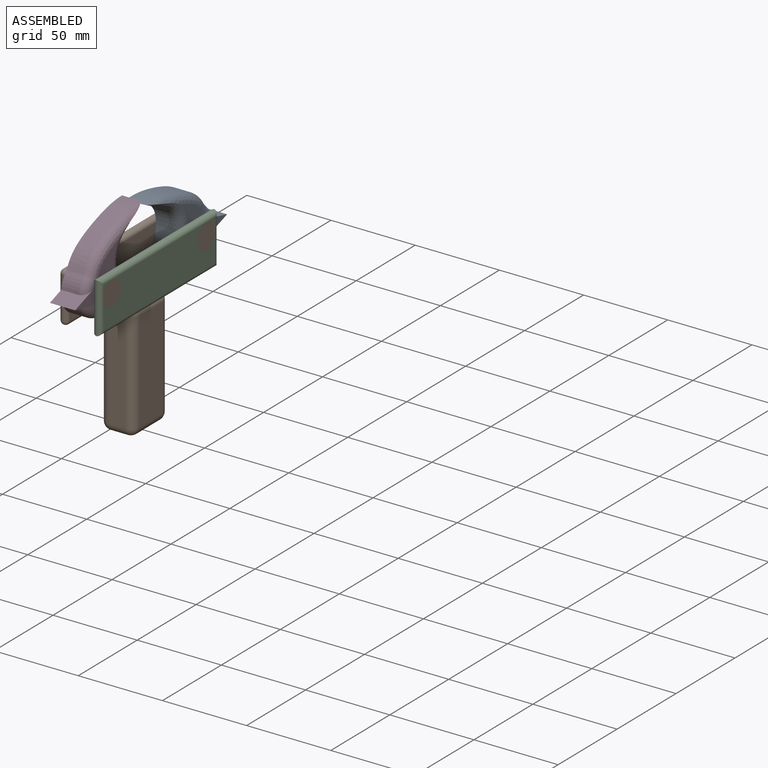
[diagram: assembled view]
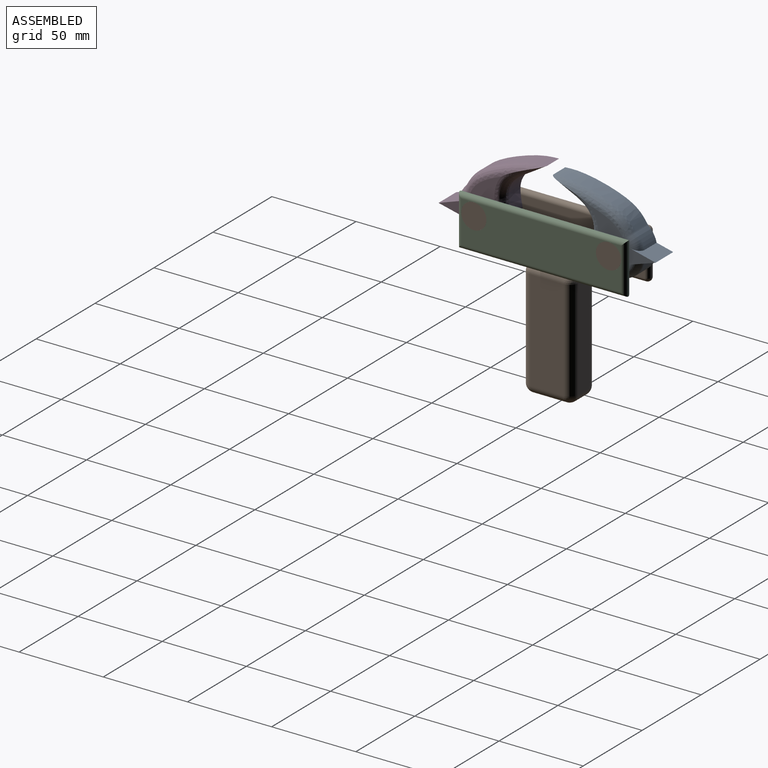
[diagram: assembled view, second angle]
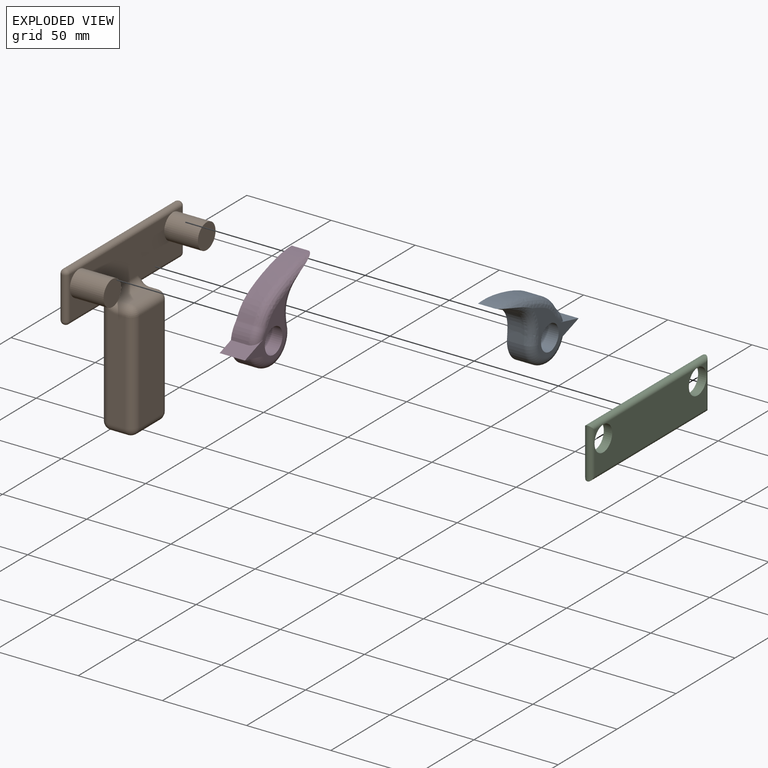
[diagram: exploded view]
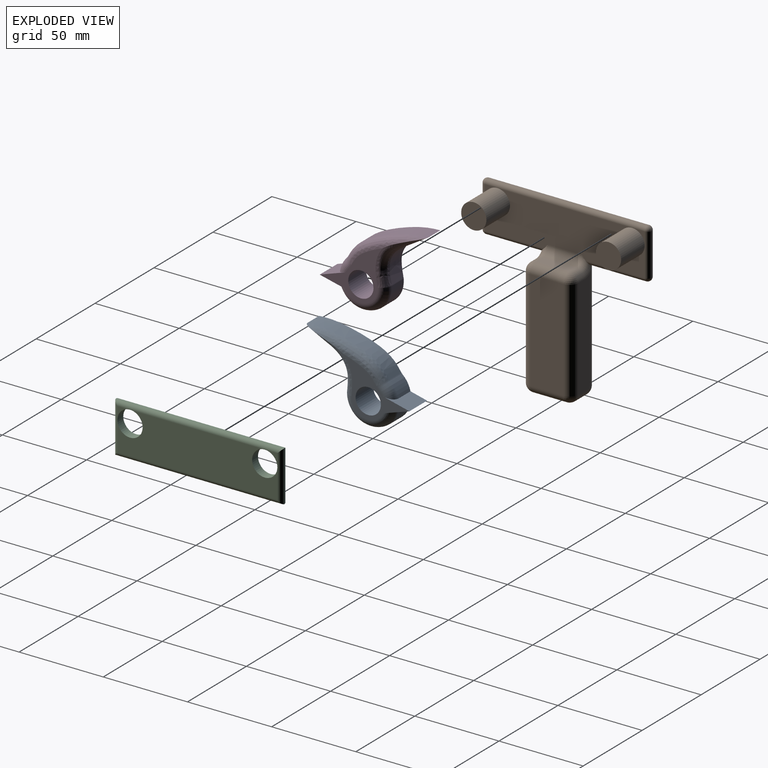
[diagram: exploded view, second angle]
ASSEMBLY  parts=4 mates=3
PART A: 15 faces, bbox 17.1x35.6x75.7 mm
  f0: extruded ~37.52x11.81mm, area 429.6mm2, adj f1,f5,f8,f13
  f1: cylinder r=15mm len=26.84mm, axis (-1,0,0), area 451.1mm2, adj f0,f2,f8,f11
  f2: plane 17.05x15.64mm, normal (0,-0.54,-0.84), area 158.4mm2, adj f1,f3,f7,f8,f11
  f3: plane 17.05x16.74mm, normal (0,0.91,0.42), area 158.4mm2, adj f2,f4,f7,f8,f10
  f4: cylinder r=15mm len=10mm, axis (-1,0,0), area 93.2mm2, adj f3,f8,f9,f10
  f5: extruded ~48.79x18.41mm, area 537mm2, adj f0,f8,f9,f14
  f6: cylinder r=7.5mm len=15mm, axis (-1,0,0), area 706.9mm2, adj f7,f8
  f7: plane 43.51x26.06mm, normal (1,0,0), area 325.2mm2, adj f2,f3,f6,f10,f11,f12,f13,f14
  f8: plane 67.84x32.27mm, normal (-1,0,0), area 912.8mm2, adj f0,f1,f2,f3,f4,f5,f6,f9
  f9: cylinder r=5mm len=10mm, axis (-1,0,0), area 12.8mm2, adj f4,f5,f8,f12
  f10: torus R=10mm, axis (1,0,0), area 50.9mm2, adj f3,f4,f7,f12
  f11: torus R=10mm, axis (1,0,0), area 297mm2, adj f1,f2,f7,f13
  f12: torus R=10mm, axis (1,0,0), area 13.7mm2, adj f7,f9,f10,f14
  f13: bspline ~49.53x19.96mm, area 252.5mm2, adj f0,f7,f11,f14
  f14: bspline ~51.45x22.65mm, area 306.3mm2, adj f5,f7,f12,f13
PART B: 42 faces, bbox 29.8x100.1x100.1 mm
  f0: plane 7.5x7.5mm, normal (1,0,0), area 12.1mm2, adj f6,f14,f35
  f1: plane 95.09x25.09mm, normal (1,0,0), area 1941.4mm2, adj f4,f6,f13,f14,f15,f20,f26,f35
  f2: plane 7.5x7.5mm, normal (1,0,0), area 12.1mm2, adj f4,f15,f35
  f3: plane 95x92.5mm, normal (-1,0,0), area 3725mm2, adj f14,f15,f16,f17,f34,f35,f39,f40
  f4: cylinder r=7.5mm len=20mm, axis (-1,0,0), area 942.5mm2, adj f1,f2,f5
  f5: plane 15x15mm, normal (1,0,0), area 176.7mm2, adj f4
  f6: cylinder r=7.5mm len=20mm, axis (-1,0,0), area 942.5mm2, adj f0,f1,f7
  f7: plane 15x15mm, normal (1,0,0), area 176.7mm2, adj f6
  f8: plane 20x5mm, normal (0,0,1), area 100mm2, adj f13,f21,f23,f25
  f9: plane 20x10mm, normal (0,0,-1), area 200mm2, adj f27,f30,f31,f34
  f10: plane 61.34x10mm, normal (0,1,0), area 602.2mm2, adj f16,f18,f20,f21,f31
  f11: plane 61.34x10mm, normal (0,-1,0), area 602.2mm2, adj f17,f19,f25,f26,f30
  f12: plane 60x20mm, normal (1,0,0), area 1200mm2, adj f18,f19,f23,f27
  f13: cylinder r=5mm len=20mm, axis (0,-1,0), area 157.1mm2, adj f1,f8,f20,f26
  f14: cylinder r=2.5mm len=25mm, axis (0,0,-1), area 196.3mm2, adj f0,f1,f3,f37,f41
  f15: cylinder r=2.5mm len=25mm, axis (0,0,1), area 196.3mm2, adj f1,f2,f3,f36,f38
  f16: cylinder r=5mm len=67.5mm, axis (0,0,1), area 512.4mm2, adj f3,f10,f20,f33,f40
  f17: cylinder r=5mm len=67.5mm, axis (0,0,-1), area 512.4mm2, adj f3,f11,f26,f32,f39
  f18: cylinder r=5mm len=60mm, axis (0,0,-1), area 471.2mm2, adj f10,f12,f22,f29
  f19: cylinder r=5mm len=60mm, axis (0,0,1), area 471.2mm2, adj f11,f12,f24,f28
  f20: torus R=10mm, axis (0,-1,0), area 52.6mm2, adj f1,f10,f13,f16,f21,f40
  f21: cylinder r=5mm len=5mm, axis (1,0,0), area 39.3mm2, adj f8,f10,f20,f22
  f22: sphere r=5mm, area 39.3mm2, adj f18,f21,f23
  f23: cylinder r=5mm len=20mm, axis (0,1,0), area 157.1mm2, adj f8,f12,f22,f24
  f24: sphere r=5mm, area 39.3mm2, adj f19,f23,f25
  f25: cylinder r=5mm len=5mm, axis (1,0,0), area 39.3mm2, adj f8,f11,f24,f26
  f26: torus R=10mm, axis (0,1,0), area 52.6mm2, adj f1,f11,f13,f17,f25,f39
  f27: cylinder r=5mm len=20mm, axis (0,-1,0), area 157.1mm2, adj f9,f12,f28,f29
  f28: sphere r=5mm, area 39.3mm2, adj f19,f27,f30
  f29: sphere r=5mm, area 39.3mm2, adj f18,f27,f31
  f30: cylinder r=5mm len=10mm, axis (-1,0,0), area 78.5mm2, adj f9,f11,f28,f32
  f31: cylinder r=5mm len=10mm, axis (-1,0,0), area 78.5mm2, adj f9,f10,f29,f33
  f32: sphere r=5mm, area 39.3mm2, adj f17,f30,f34
  f33: sphere r=5mm, area 39.3mm2, adj f16,f31,f34
  f34: cylinder r=5mm len=20mm, axis (0,1,0), area 157.1mm2, adj f3,f9,f32,f33
  f35: cylinder r=2.5mm len=95mm, axis (0,1,0), area 746.1mm2, adj f0,f1,f2,f3,f36,f37
  f36: sphere r=2.5mm, area 19.6mm2, adj f15,f35
  f37: sphere r=2.5mm, area 19.6mm2, adj f14,f35
  f38: sphere r=2.5mm, area 19.6mm2, adj f15,f39
  f39: cylinder r=2.5mm len=37.5mm, axis (0,-1,0), area 271.4mm2, adj f1,f3,f17,f26,f38
  f40: cylinder r=2.5mm len=37.5mm, axis (0,-1,0), area 271.4mm2, adj f1,f3,f16,f20,f41
  f41: sphere r=2.5mm, area 19.6mm2, adj f14,f40
PART C: 12 faces, bbox 5x100x30 mm
  f0: plane 95x25mm, normal (1,0,0), area 1997.4mm2, adj f4,f5,f8,f9,f10,f11
  f1: plane 7.5x7.5mm, normal (1,0,0), area 12.1mm2, adj f5,f8,f10
  f2: plane 95x25mm, normal (-1,0,0), area 1997.4mm2, adj f4,f5,f8,f9,f10,f11
  f3: plane 7.5x7.5mm, normal (-1,0,0), area 12.1mm2, adj f5,f8,f10
  f4: cylinder r=7.5mm len=15mm, axis (-1,0,0), area 235.6mm2, adj f0,f2,f6,f7
  f5: cylinder r=7.5mm len=15mm, axis (-1,0,0), area 235.6mm2, adj f0,f1,f2,f3
  f6: plane 7.5x7.5mm, normal (1,0,0), area 12.1mm2, adj f4,f8,f9
  f7: plane 7.5x7.5mm, normal (-1,0,0), area 12.1mm2, adj f4,f8,f9
  f8: cylinder r=2.5mm len=100.02mm, axis (0,1,0), area 771.1mm2, adj f0,f1,f2,f3,f6,f7,f9,f10
  f9: cylinder r=2.5mm len=30.02mm, axis (0,0,1), area 221.3mm2, adj f0,f2,f6,f7,f8,f11
  f10: cylinder r=2.5mm len=30.02mm, axis (0,0,-1), area 221.3mm2, adj f0,f1,f2,f3,f8,f11
  f11: cylinder r=2.5mm len=100.02mm, axis (0,-1,0), area 771.1mm2, adj f0,f2,f9,f10
PART D: 17 faces, bbox 17.1x35.6x75.7 mm
  f0: cylinder r=15mm len=10mm, axis (-1,0,0), area 93.2mm2, adj f1,f8,f9,f13
  f1: plane 17.05x16.74mm, normal (0,-0.91,0.42), area 158.4mm2, adj f0,f2,f7,f8,f13
  f2: plane 17.05x15.64mm, normal (0,0.54,-0.84), area 158.4mm2, adj f1,f3,f7,f8,f14
  f3: cylinder r=15mm len=26.66mm, axis (-1,0,0), area 448.2mm2, adj f2,f8,f14,f16
  f4: extruded ~37.39x11.61mm, area 427.2mm2, adj f6,f8,f10,f16
  f5: cylinder r=7.5mm len=15mm, axis (-1,0,0), area 706.9mm2, adj f7,f8
  f6: extruded ~48.79x18.41mm, area 537mm2, adj f4,f8,f9,f11
  f7: plane 43.51x26.06mm, normal (1,0,0), area 325.2mm2, adj f1,f2,f5,f10,f11,f12,f13,f14
  f8: plane 67.84x32.27mm, normal (-1,0,0), area 912.7mm2, adj f0,f1,f2,f3,f4,f5,f6,f9
  f9: cylinder r=5mm len=10mm, axis (-1,0,0), area 12.8mm2, adj f0,f6,f8,f12
  f10: bspline ~49.53x19.93mm, area 251.6mm2, adj f4,f7,f11,f15
  f11: bspline ~51.45x22.65mm, area 306.3mm2, adj f6,f7,f10,f12
  f12: torus R=10mm, axis (1,0,0), area 13.7mm2, adj f7,f9,f11,f13
  f13: torus R=10mm, axis (1,0,0), area 50.9mm2, adj f0,f1,f7,f12
  f14: torus R=10mm, axis (1,0,0), area 296mm2, adj f2,f3,f7,f15
  f15: sphere r=5mm, area 2.6mm2, adj f10,f14,f16
  f16: cylinder r=5mm len=10mm, axis (-1,0,0), area 5.3mm2, adj f3,f4,f8,f15
PLACE A rot(axis=(1,0,0),51.5deg) t=(5,96.42,-59.55)mm
PLACE B t=(0,47.5,2.5)mm
PLACE C t=(20,-90.13,2.5)mm
PLACE D rot(axis=(-1,0,0),46deg) t=(5,3.6,-60.17)mm
MATE revolute A.f1 <-> B.f6  axis (1,0,0) through (20,87.5,-7.5)mm
MATE fastened C.f4 <-> B.f4  axis (1,0,0) through (25,7.5,-7.5)mm
MATE revolute D.f0 <-> B.f4  axis (1,0,0) through (20,7.5,-7.5)mm
